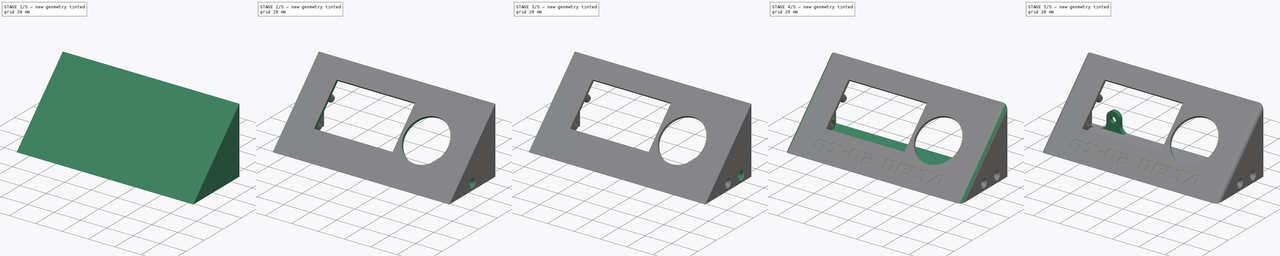
[diagram: build sequence overview — one tinted view per stage of 5, left to right]
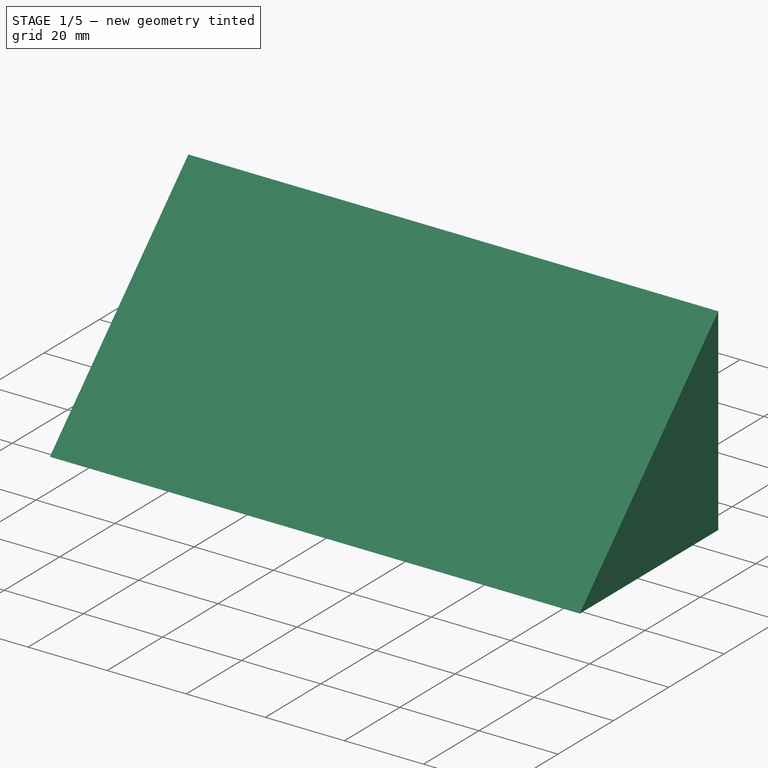
[diagram: stage 1 of 5 — iso view after this stage's code; geometry added in this stage tinted green]
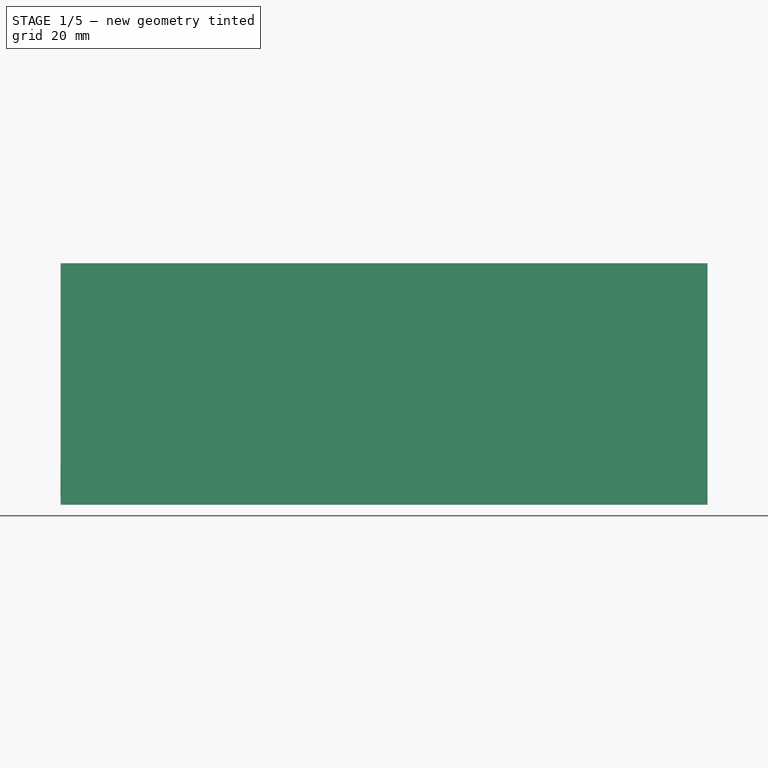
[diagram: stage 1 of 5 — front view after this stage's code; geometry added in this stage tinted green]
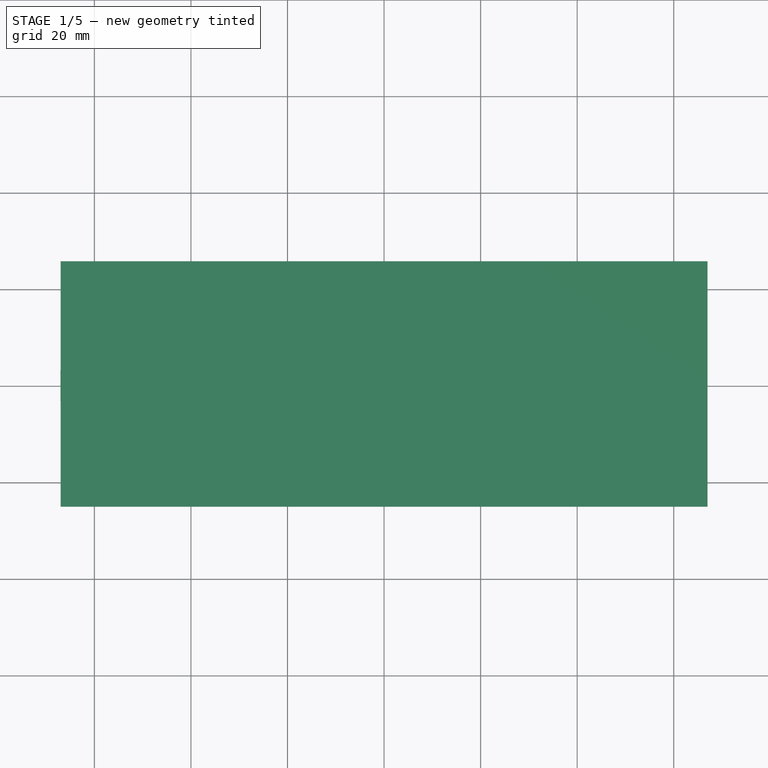
[diagram: stage 1 of 5 — top view after this stage's code; geometry added in this stage tinted green]
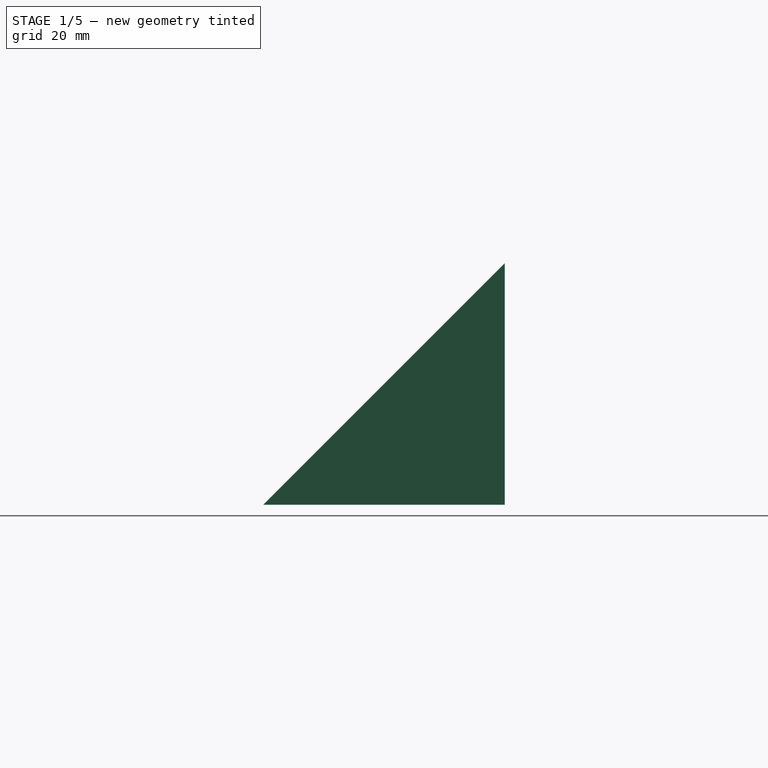
[diagram: stage 1 of 5 — right view after this stage's code; geometry added in this stage tinted green]
FCSTD DOCUMENT  (FreeCAD 0.16R6707 (Git))
Label: Mini Viki Screen Mount
License: CreativeCommons Attribution-NonCommercial
LicenseURL: http://creativecommons.org/licenses/by-nc/4.0/
objects: Sketcher::SketchObject×18, PartDesign::Pad×10, Part::Cut×6, PartDesign::Pocket×4, PartDesign::Revolution×4, PartDesign::Fillet×3, Part::Feature×2, PartDesign::Mirrored×2, PartDesign::Chamfer×1
note: 68 computed .brp shape members not serialized (recipe doc carries the construction recipe); baked Part::Feature solids carry a one-line shape summary decoded from their .brp

FEATURE [Part::Feature] Part__Feature  label="Case"
  Placement = pos=(-45,9.5,0) rot=(0,0,1;0rad)
  shape: bbox 119.5 x 57 x 20 mm, 780 faces, 0 solids (baked)
FEATURE [Sketcher::SketchObject] Sketch
  Placement = pos=(0,0,0) rot=(0.57735,0.57735,0.57735;2.0944rad)
  sketch-geometry (3):
    g0: LineSegment StartX=-25 StartY=-25 StartZ=0 EndX=25 EndY=-25 EndZ=0
    g1: LineSegment StartX=25 StartY=-25 StartZ=0 EndX=25 EndY=25 EndZ=0
    g2: LineSegment StartX=-25 StartY=-25 StartZ=0 EndX=25 EndY=25 EndZ=0
  constraints (10):
    c: Horizontal(g0)
    c: Vertical(g1)
    c: Coincident(g1,g0)
    c: Coincident(g2,g1)
    c: PointOnObject(g-1,g2)
    c: Coincident(g0,g2)
    c: Angle(g0,g2) = 0.785398
    c: Equal(g1,g0)
    c: DistanceY(g1,g1) = 50
    c: Symmetric(g0,g1,g-1)
FEATURE [PartDesign::Pad] Pad
  Length = 134
  Length2 = 100
  Midplane = true
  Placement = pos=(0,0,0) rot=(0.57735,0.57735,0.57735;2.0944rad)
  Sketch = -> Sketch
  Type = 0
FEATURE [Sketcher::SketchObject] Sketch002
  Placement = pos=(0,0,0) rot=(0.57735,0.57735,0.57735;2.0944rad)
  sketch-geometry (3):
    g0: LineSegment StartX=-22 StartY=-25 StartZ=0 EndX=26 EndY=23 EndZ=0
    g1: LineSegment StartX=-22 StartY=-25 StartZ=0 EndX=26 EndY=-25 EndZ=0
    g2: LineSegment StartX=26 StartY=23 StartZ=0 EndX=26 EndY=-25 EndZ=0
  constraints (9):
    c: Coincident(g1,g0)
    c: Coincident(g2,g0)
    c: Vertical(g2)
    c: DistanceX(g0,g-1) = 22
    c: DistanceX(g0,g1) = 48
    c: Equal(g1,g2)
    c: Angle(g1,g0) = 0.785398
    c: DistanceY(g0,g-1) = 25
    c: Coincident(g1,g2)
FEATURE [PartDesign::Pad] Pad001
  Length = 126
  Length2 = 100
  Midplane = true
  Placement = pos=(0,0,0) rot=(0.57735,0.57735,0.57735;2.0944rad)
  Sketch = -> Sketch002
  Type = 0
FEATURE [Part::Cut] Cut
  Base = -> Pad
  Tool = -> Pad001
FEATURE [Sketcher::SketchObject] Sketch003
  Placement = pos=(0,1.5,-1.5) rot=(1,0,0;3.92699rad)
  Support = -> Cut [Face5]
  sketch-geometry (8):
    g0: Circle CenterX=-49 CenterY=9.5 CenterZ=0 NormalX=0 NormalY=0 NormalZ=1 Radius=2.5
    g1: Circle CenterX=-49 CenterY=-10.5 CenterZ=0 NormalX=0 NormalY=0 NormalZ=1 Radius=2.5
    g2: Circle CenterX=47 CenterY=19.5 CenterZ=0 NormalX=0 NormalY=0 NormalZ=1 Radius=2.5
    g3: Circle CenterX=47 CenterY=-19.5 CenterZ=0 NormalX=0 NormalY=0 NormalZ=1 Radius=2.5
    g4: LineSegment [constr] StartX=-52.5 StartY=23 StartZ=0 EndX=52.5 EndY=23 EndZ=0
    g5: LineSegment [constr] StartX=52.5 StartY=23 StartZ=0 EndX=52.5 EndY=-23 EndZ=0
    g6: LineSegment [constr] StartX=52.5 StartY=-23 StartZ=0 EndX=-52.5 EndY=-23 EndZ=0
    g7: LineSegment [constr] StartX=-52.5 StartY=-23 StartZ=0 EndX=-52.5 EndY=23 EndZ=0
  constraints (23):
    c: Radius(g0) = 2.5
    c: Equal(g0,g1)
    c: Equal(g0,g3)
    c: Equal(g0,g2)
    c: Coincident(g4,g5)
    c: Coincident(g5,g6)
    c: Coincident(g6,g7)
    c: Coincident(g7,g4)
    c: Horizontal(g4)
    c: Horizontal(g6)
    c: Vertical(g5)
    c: Vertical(g7)
    c: DistanceY(g5,g5) = 46
    c: Symmetric(g5,g4,g-1)
    c: DistanceX(g4,g4) = 105
    c: Symmetric(g4,g4,g-2)
    c: Symmetric(g3,g2,g-1)
    c: DistanceX(g3,g5) = 5.5
    c: DistanceY(g5,g3) = 3.5
    c: DistanceY(g0,g4) = 13.5
    c: DistanceX(g4,g0) = 3.5
    c: DistanceX(g6,g1) = 3.5
    c: DistanceY(g6,g1) = 12.5
FEATURE [PartDesign::Pad] Pad002
  Length = 5.5
  Length2 = 100
  Sketch = -> Sketch003
  Type = 0
FEATURE [Sketcher::SketchObject] Sketch009
  Placement = pos=(-66.2,0,-20) rot=(0,0,1;1.5708rad)
  sketch-geometry (4):
    g0: LineSegment StartX=-3.2 StartY=0.825 StartZ=0 EndX=0 EndY=0.825 EndZ=0
    g1: LineSegment StartX=-1.7 StartY=-0.825 StartZ=0 EndX=0 EndY=-0.825 EndZ=0
    g2: LineSegment StartX=-3.2 StartY=0.825 StartZ=0 EndX=-1.7 EndY=-0.825 EndZ=0
    g3: LineSegment StartX=0 StartY=0.825 StartZ=0 EndX=0 EndY=-0.825 EndZ=0
  constraints (12):
    c: Horizontal(g0)
    c: Horizontal(g1)
    c: DistanceY(g1,g0) = 1.65
    c: Coincident(g2,g0)
    c: Coincident(g2,g1)
    c: DistanceX(g0,g0) = 3.2
    c: DistanceX(g1,g1) = 1.7
    c: DistanceY(g-1,g0) = 0.825
    c: PointOnObject(g1,g-2)
    c: PointOnObject(g0,g-2)
    c: Coincident(g3,g0)
    c: Coincident(g3,g1)
FEATURE [PartDesign::Revolution] Revolution002
  Angle = 360
  Axis = (-1,0,0)
  Base = (-66.2,0,-20)
  Placement = pos=(-66.2,0,-20) rot=(0,0,1;1.5708rad)
  ReferenceAxis = -> Sketch009 [V_Axis]
  Sketch = -> Sketch009
FEATURE [Sketcher::SketchObject] Sketch010
  Placement = pos=(-65.375,0,-20) rot=(0.57735,0.57735,0.57735;2.0944rad)
  Support = -> Revolution002 [Face3]
  sketch-geometry (1):
    g0: Circle CenterX=0 CenterY=0 CenterZ=0 NormalX=0 NormalY=0 NormalZ=1 Radius=1.7
  constraints (2):
    c: Radius(g0) = 1.7
    c: Coincident(g0,g-1)
FEATURE [PartDesign::Pad] Pad005
  Length = 15
  Length2 = 100
  Placement = pos=(-66.2,0,-20) rot=(0,0,1;1.5708rad)
  Sketch = -> Sketch010
  Type = 0
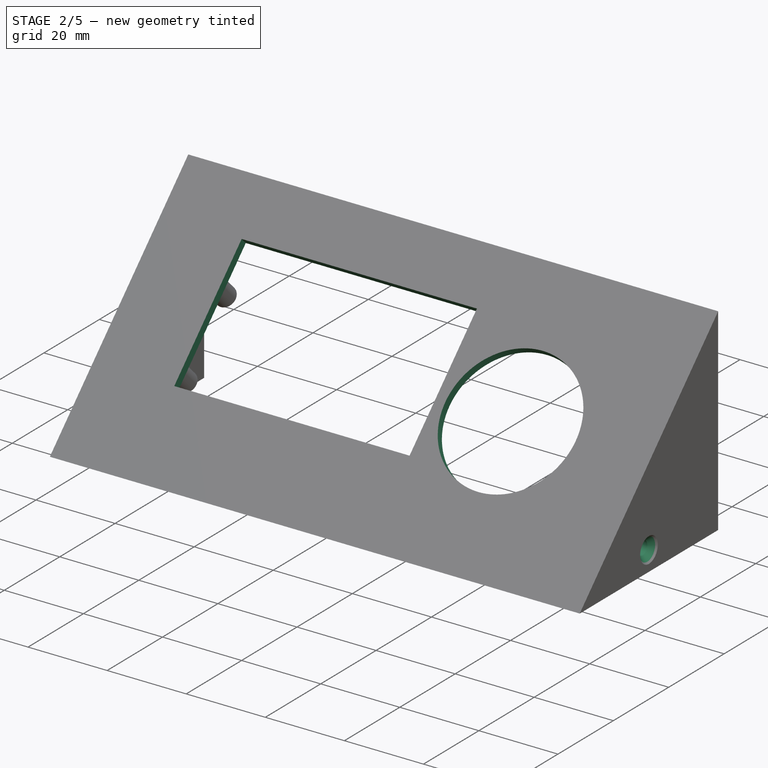
[diagram: stage 2 of 5 — iso view after this stage's code; geometry added in this stage tinted green]
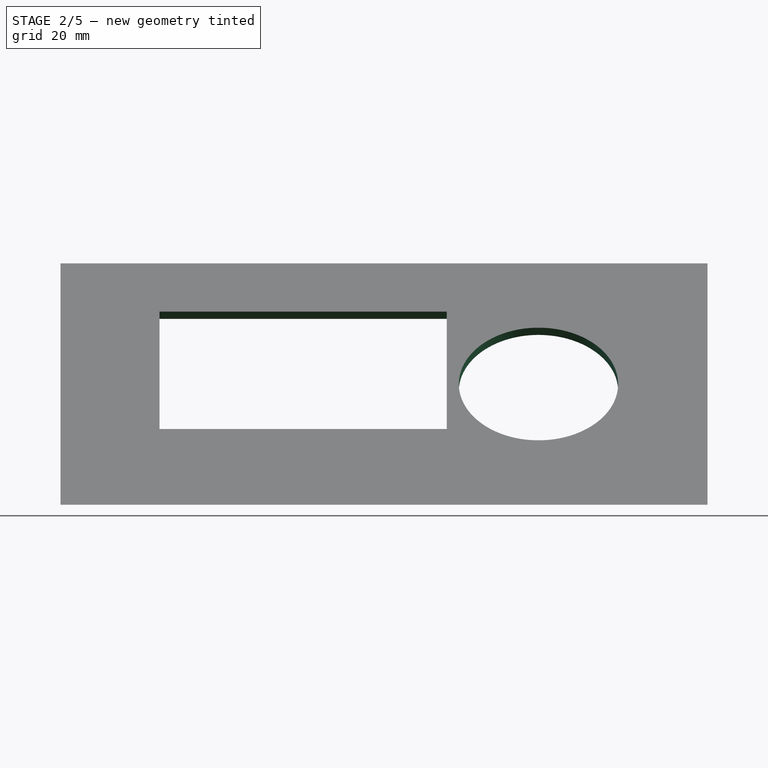
[diagram: stage 2 of 5 — front view after this stage's code; geometry added in this stage tinted green]
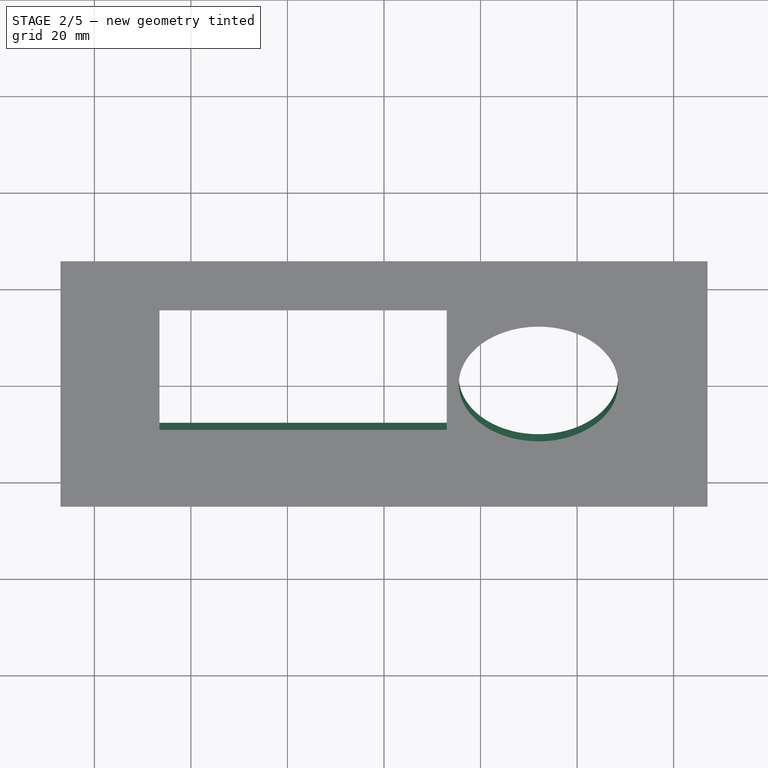
[diagram: stage 2 of 5 — top view after this stage's code; geometry added in this stage tinted green]
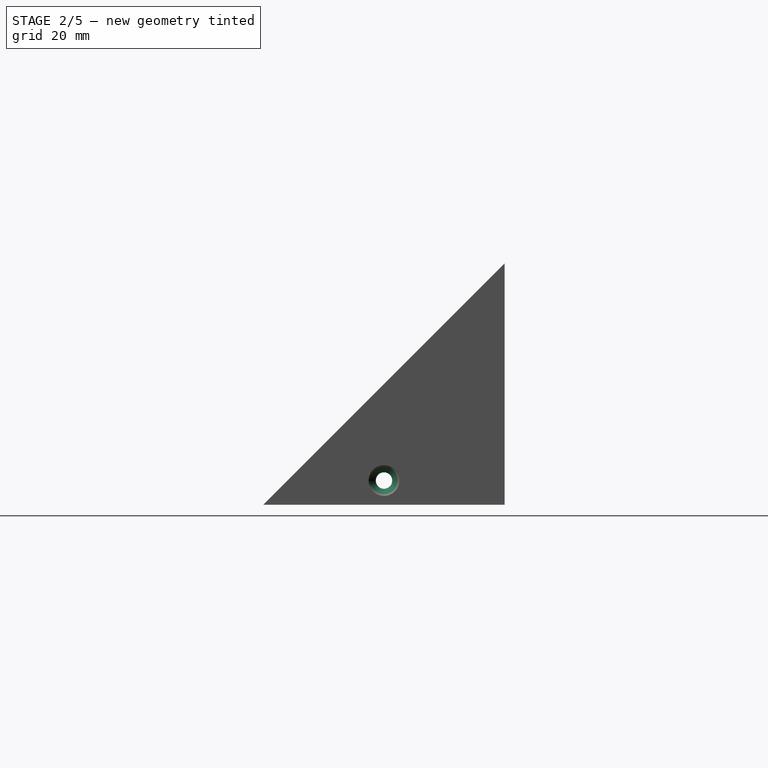
[diagram: stage 2 of 5 — right view after this stage's code; geometry added in this stage tinted green]
FEATURE [Sketcher::SketchObject] Sketch004
  Placement = pos=(0,5.38909,-5.38909) rot=(0,0.92388,0.382683;3.14159rad)
  Support = -> Pad002 [Face15]
  sketch-geometry (8):
    g0: Circle CenterX=49 CenterY=10.5 CenterZ=0 NormalX=0 NormalY=0 NormalZ=1 Radius=1.6
    g1: Circle CenterX=49 CenterY=-9.5 CenterZ=0 NormalX=0 NormalY=0 NormalZ=1 Radius=1.6
    g2: Circle CenterX=-47 CenterY=19.5 CenterZ=0 NormalX=0 NormalY=0 NormalZ=1 Radius=1.6
    g3: Circle CenterX=-47 CenterY=-19.5 CenterZ=0 NormalX=0 NormalY=0 NormalZ=1 Radius=1.6
    g4: LineSegment [constr] StartX=-52.5 StartY=23 StartZ=0 EndX=52.5 EndY=23 EndZ=0
    g5: LineSegment [constr] StartX=52.5 StartY=23 StartZ=0 EndX=52.5 EndY=-23 EndZ=0
    g6: LineSegment [constr] StartX=52.5 StartY=-23 StartZ=0 EndX=-52.5 EndY=-23 EndZ=0
    g7: LineSegment [constr] StartX=-52.5 StartY=-23 StartZ=0 EndX=-52.5 EndY=23 EndZ=0
  constraints (23):
    c: Symmetric(g2,g3,g-1)
    c: Radius(g0) = 1.6
    c: Equal(g0,g1)
    c: Equal(g0,g3)
    c: Equal(g0,g2)
    c: Coincident(g4,g5)
    c: Coincident(g5,g6)
    c: Coincident(g6,g7)
    c: Coincident(g7,g4)
    c: Horizontal(g4)
    c: Horizontal(g6)
    c: Vertical(g5)
    c: Vertical(g7)
    c: Symmetric(g5,g4,g-1)
    c: Symmetric(g4,g4,g-2)
    c: DistanceX(g4,g4) = 105
    c: DistanceY(g5,g5) = 46
    c: DistanceX(g4,g2) = 5.5
    c: DistanceY(g2,g4) = 3.5
    c: DistanceX(g1,g5) = 3.5
    c: DistanceY(g5,g1) = 13.5
    c: DistanceY(g0,g4) = 12.5
    c: DistanceX(g0,g4) = 3.5
FEATURE [PartDesign::Pocket] Pocket
  Length = 5.5
  Sketch = -> Sketch004
  Type = 0
FEATURE [Sketcher::SketchObject] Sketch001  label="Base Sketch"
  Placement = pos=(0,0,0) rot=(1,0,0;0.785398rad)
  Support = -> Pocket [Face8]
  sketch-geometry (10):
    g0: Circle CenterX=32 CenterY=0 CenterZ=0 NormalX=0 NormalY=0 NormalZ=1 Radius=16.5
    g1: LineSegment StartX=-46.5 StartY=21.2 StartZ=0 EndX=13 EndY=21.2 EndZ=0
    g2: LineSegment StartX=13 StartY=21.2 StartZ=0 EndX=13 EndY=-13.2 EndZ=0
    g3: LineSegment StartX=13 StartY=-13.2 StartZ=0 EndX=-46.5 EndY=-13.2 EndZ=0
    g4: LineSegment StartX=-46.5 StartY=-13.2 StartZ=0 EndX=-46.5 EndY=21.2 EndZ=0
    g5: LineSegment [constr] StartX=-52.5 StartY=23 StartZ=0 EndX=52.5 EndY=23 EndZ=0
    g6: LineSegment [constr] StartX=52.5 StartY=23 StartZ=0 EndX=52.5 EndY=-23 EndZ=0
    g7: LineSegment [constr] StartX=52.5 StartY=-23 StartZ=0 EndX=-52.5 EndY=-23 EndZ=0
    g8: LineSegment [constr] StartX=-52.5 StartY=-23 StartZ=0 EndX=-52.5 EndY=23 EndZ=0
    g9: GeomPoint [constr] X=48.5 Y=0 Z=0
  constraints (29):
    c: Coincident(g1,g2)
    c: Coincident(g2,g3)
    c: Coincident(g3,g4)
    c: Coincident(g4,g1)
    c: Horizontal(g1)
    c: Horizontal(g3)
    c: Vertical(g2)
    c: Vertical(g4)
    c: DistanceY(g2,g2) = 34.4
    c: DistanceX(g3,g3) = 59.5
    c: Radius(g0) = 16.5
    c: PointOnObject(g0,g-1)
    c: Coincident(g5,g6)
    c: Coincident(g6,g7)
    c: Coincident(g7,g8)
    c: Coincident(g8,g5)
    c: Horizontal(g5)
    c: Horizontal(g7)
    c: Vertical(g6)
    c: Vertical(g8)
    c: Symmetric(g6,g5,g-1)
    c: Symmetric(g5,g5,g-2)
    c: DistanceY(g6,g6) = 46
    c: DistanceX(g5,g5) = 105
    c: DistanceY(g1,g5) = 1.8
    c: PointOnObject(g9,g0)
    c: PointOnObject(g9,g-1)
    c: DistanceX(g9,g6) = 4
    c: DistanceX(g5,g1) = 6
FEATURE [PartDesign::Pocket] Pocket001
  Length = 5
  Sketch = -> Sketch001
  Type = 0
FEATURE [Sketcher::SketchObject] Sketch005
  Placement = pos=(66.2,0,-20) rot=(0.707107,0.707107,0;3.14159rad)
  sketch-geometry (4):
    g0: LineSegment StartX=-3.2 StartY=0.825 StartZ=0 EndX=0 EndY=0.825 EndZ=0
    g1: LineSegment StartX=-1.7 StartY=-0.825 StartZ=0 EndX=0 EndY=-0.825 EndZ=0
    g2: LineSegment StartX=-3.2 StartY=0.825 StartZ=0 EndX=-1.7 EndY=-0.825 EndZ=0
    g3: LineSegment StartX=0 StartY=0.825 StartZ=0 EndX=0 EndY=-0.825 EndZ=0
  constraints (12):
    c: Horizontal(g0)
    c: Horizontal(g1)
    c: DistanceY(g1,g0) = 1.65
    c: Coincident(g2,g0)
    c: Coincident(g2,g1)
    c: DistanceX(g0,g0) = 3.2
    c: DistanceX(g1,g1) = 1.7
    c: DistanceY(g-1,g0) = 0.825
    c: PointOnObject(g1,g-2)
    c: PointOnObject(g0,g-2)
    c: Coincident(g3,g0)
    c: Coincident(g3,g1)
FEATURE [PartDesign::Revolution] Revolution
  Angle = 360
  Axis = (1,0,0)
  Base = (66.2,0,-20)
  Placement = pos=(66.2,0,-20) rot=(0.707107,0.707107,0;3.14159rad)
  ReferenceAxis = -> Sketch005 [V_Axis]
  Sketch = -> Sketch005
FEATURE [Sketcher::SketchObject] Sketch006
  Placement = pos=(65.375,0,-20) rot=(0.57735,0.57735,-0.57735;4.18879rad)
  Support = -> Revolution [Face3]
  sketch-geometry (1):
    g0: Circle CenterX=0 CenterY=0 CenterZ=0 NormalX=0 NormalY=0 NormalZ=1 Radius=1.7
  constraints (2):
    c: Radius(g0) = 1.7
    c: Coincident(g0,g-1)
FEATURE [PartDesign::Pad] Pad003
  Length = 15
  Length2 = 100
  Placement = pos=(66.2,0,-20) rot=(0.707107,0.707107,0;3.14159rad)
  Sketch = -> Sketch006
  Type = 0
FEATURE [Sketcher::SketchObject] Sketch017
  Placement = pos=(0,25,-25) rot=(0,0.707107,0.707107;3.14159rad)
  Support = -> Pad009 [Face27]
  sketch-geometry (1):
    g0: Circle CenterX=45 CenterY=10 CenterZ=0 NormalX=0 NormalY=0 NormalZ=1 Radius=2.2
  constraints (3):
    c: DistanceY(g-1,g0) = 10
    c: DistanceX(g-1,g0) = 45
    c: Radius(g0) = 2.2
FEATURE [Part::Cut] Cut001
  Base = -> Pocket001
  Tool = -> Pad005
FEATURE [Part::Cut] Cut002
  Base = -> Cut001
  Tool = -> Pad003
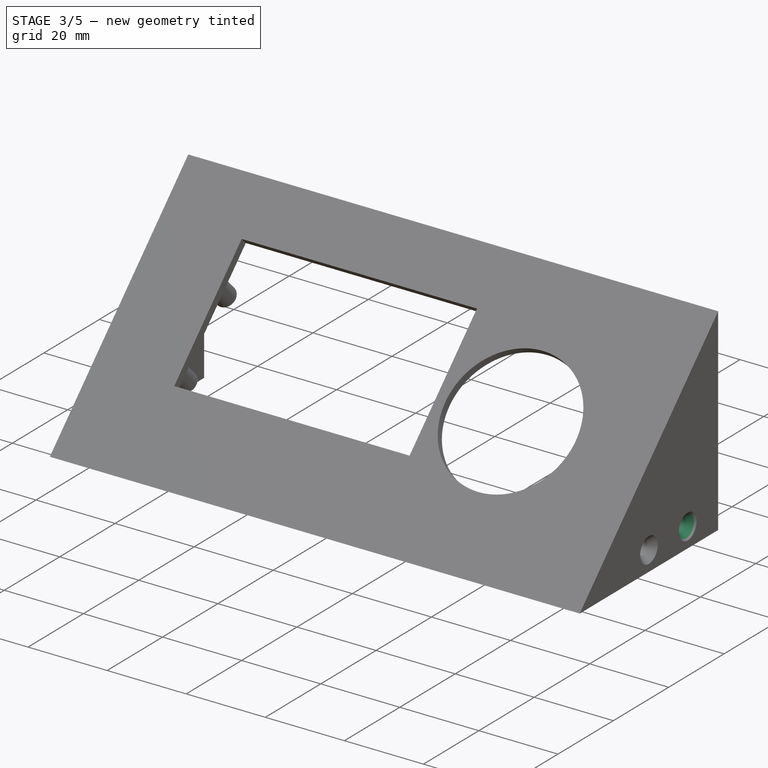
[diagram: stage 3 of 5 — iso view after this stage's code; geometry added in this stage tinted green]
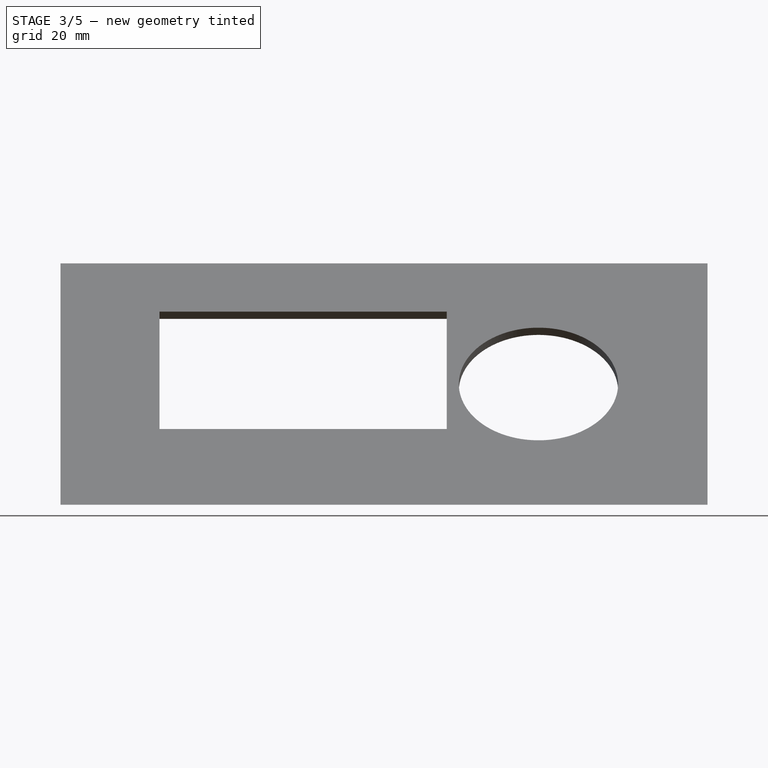
[diagram: stage 3 of 5 — front view after this stage's code; geometry added in this stage tinted green]
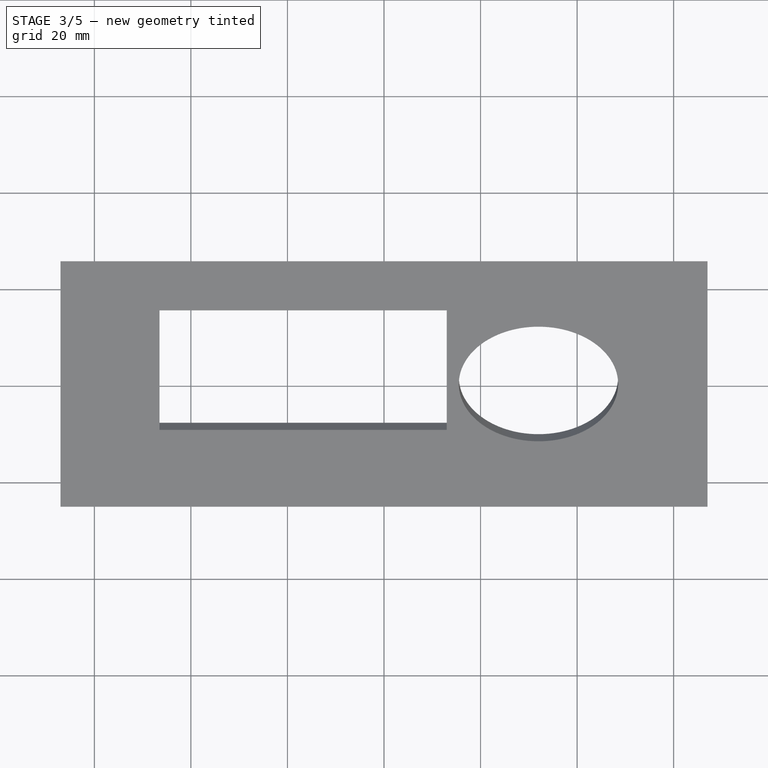
[diagram: stage 3 of 5 — top view after this stage's code; geometry added in this stage tinted green]
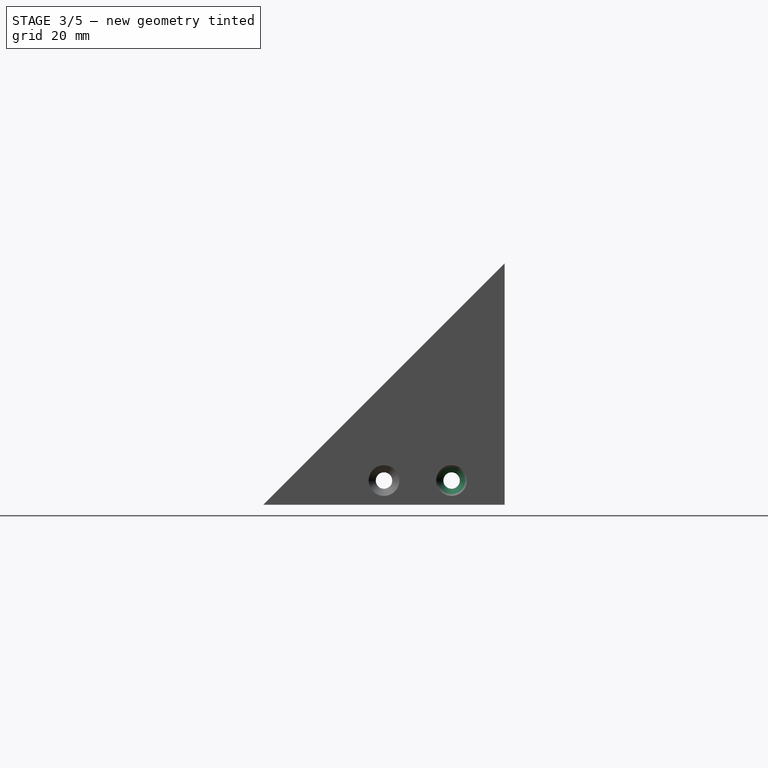
[diagram: stage 3 of 5 — right view after this stage's code; geometry added in this stage tinted green]
FEATURE [Sketcher::SketchObject] Sketch007
  Placement = pos=(66.2,14,-20) rot=(0.707107,0.707107,0;3.14159rad)
  sketch-geometry (4):
    g0: LineSegment StartX=-3.2 StartY=0.825 StartZ=0 EndX=0 EndY=0.825 EndZ=0
    g1: LineSegment StartX=-1.7 StartY=-0.825 StartZ=0 EndX=0 EndY=-0.825 EndZ=0
    g2: LineSegment StartX=-3.2 StartY=0.825 StartZ=0 EndX=-1.7 EndY=-0.825 EndZ=0
    g3: LineSegment StartX=0 StartY=0.825 StartZ=0 EndX=0 EndY=-0.825 EndZ=0
  constraints (12):
    c: Horizontal(g0)
    c: Horizontal(g1)
    c: DistanceY(g1,g0) = 1.65
    c: Coincident(g2,g0)
    c: Coincident(g2,g1)
    c: DistanceX(g0,g0) = 3.2
    c: DistanceX(g1,g1) = 1.7
    c: DistanceY(g-1,g0) = 0.825
    c: PointOnObject(g1,g-2)
    c: PointOnObject(g0,g-2)
    c: Coincident(g3,g0)
    c: Coincident(g3,g1)
FEATURE [PartDesign::Revolution] Revolution001
  Angle = 360
  Axis = (1,0,0)
  Base = (66.2,14,-20)
  Placement = pos=(66.2,14,-20) rot=(0.707107,0.707107,0;3.14159rad)
  ReferenceAxis = -> Sketch007 [V_Axis]
  Sketch = -> Sketch007
FEATURE [Sketcher::SketchObject] Sketch008
  Placement = pos=(65.375,14,-20) rot=(0.57735,0.57735,-0.57735;4.18879rad)
  Support = -> Revolution001 [Face3]
  sketch-geometry (1):
    g0: Circle CenterX=0 CenterY=0 CenterZ=0 NormalX=0 NormalY=0 NormalZ=1 Radius=1.7
  constraints (2):
    c: Radius(g0) = 1.7
    c: Coincident(g0,g-1)
FEATURE [PartDesign::Pad] Pad004
  Length = 15
  Length2 = 100
  Placement = pos=(66.2,14,-20) rot=(0.707107,0.707107,0;3.14159rad)
  Sketch = -> Sketch008
  Type = 0
FEATURE [Sketcher::SketchObject] Sketch011
  Placement = pos=(-66.2,14,-20) rot=(0,0,1;1.5708rad)
  sketch-geometry (4):
    g0: LineSegment StartX=-3.2 StartY=0.825 StartZ=0 EndX=0 EndY=0.825 EndZ=0
    g1: LineSegment StartX=-1.7 StartY=-0.825 StartZ=0 EndX=0 EndY=-0.825 EndZ=0
    g2: LineSegment StartX=-3.2 StartY=0.825 StartZ=0 EndX=-1.7 EndY=-0.825 EndZ=0
    g3: LineSegment StartX=0 StartY=0.825 StartZ=0 EndX=0 EndY=-0.825 EndZ=0
  constraints (12):
    c: Horizontal(g0)
    c: Horizontal(g1)
    c: DistanceY(g1,g0) = 1.65
    c: Coincident(g2,g0)
    c: Coincident(g2,g1)
    c: DistanceX(g0,g0) = 3.2
    c: DistanceX(g1,g1) = 1.7
    c: DistanceY(g-1,g0) = 0.825
    c: PointOnObject(g1,g-2)
    c: PointOnObject(g0,g-2)
    c: Coincident(g3,g0)
    c: Coincident(g3,g1)
FEATURE [PartDesign::Revolution] Revolution003
  Angle = 360
  Axis = (-1,0,0)
  Base = (-66.2,14,-20)
  Placement = pos=(-66.2,14,-20) rot=(0,0,1;1.5708rad)
  ReferenceAxis = -> Sketch011 [V_Axis]
  Sketch = -> Sketch011
FEATURE [Sketcher::SketchObject] Sketch012
  Placement = pos=(-65.375,14,-20) rot=(0.57735,0.57735,0.57735;2.0944rad)
  Support = -> Revolution003 [Face3]
  sketch-geometry (1):
    g0: Circle CenterX=0 CenterY=0 CenterZ=0 NormalX=0 NormalY=0 NormalZ=1 Radius=1.7
  constraints (2):
    c: Radius(g0) = 1.7
    c: Coincident(g0,g-1)
FEATURE [PartDesign::Pad] Pad006
  Length = 15
  Length2 = 100
  Placement = pos=(-66.2,14,-20) rot=(0,0,1;1.5708rad)
  Sketch = -> Sketch012
  Type = 0
FEATURE [Part::Cut] Cut003
  Base = -> Cut002
  Tool = -> Pad006
FEATURE [Part::Cut] Cut004
  Base = -> Cut003
  Tool = -> Pad004
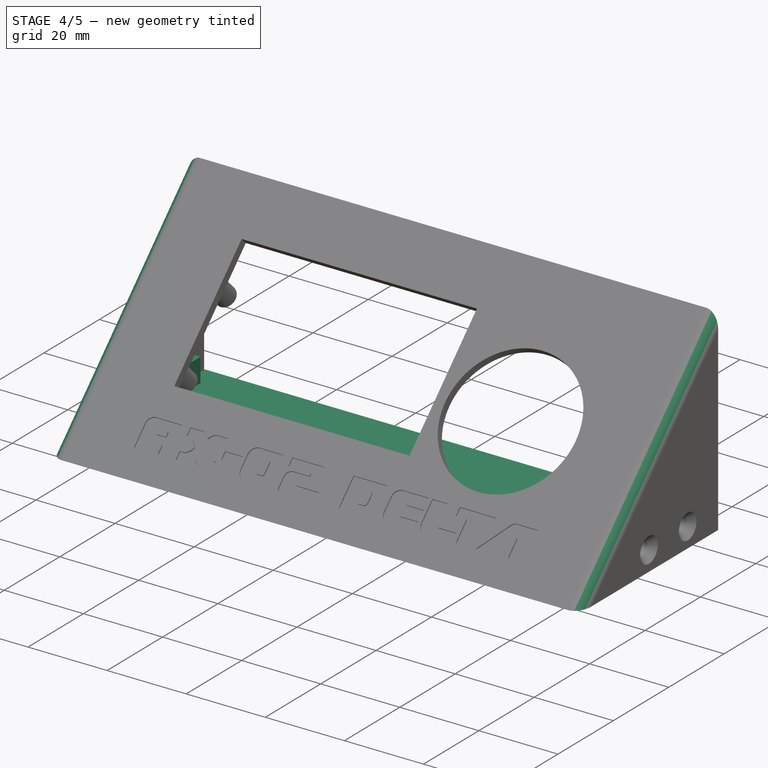
[diagram: stage 4 of 5 — iso view after this stage's code; geometry added in this stage tinted green]
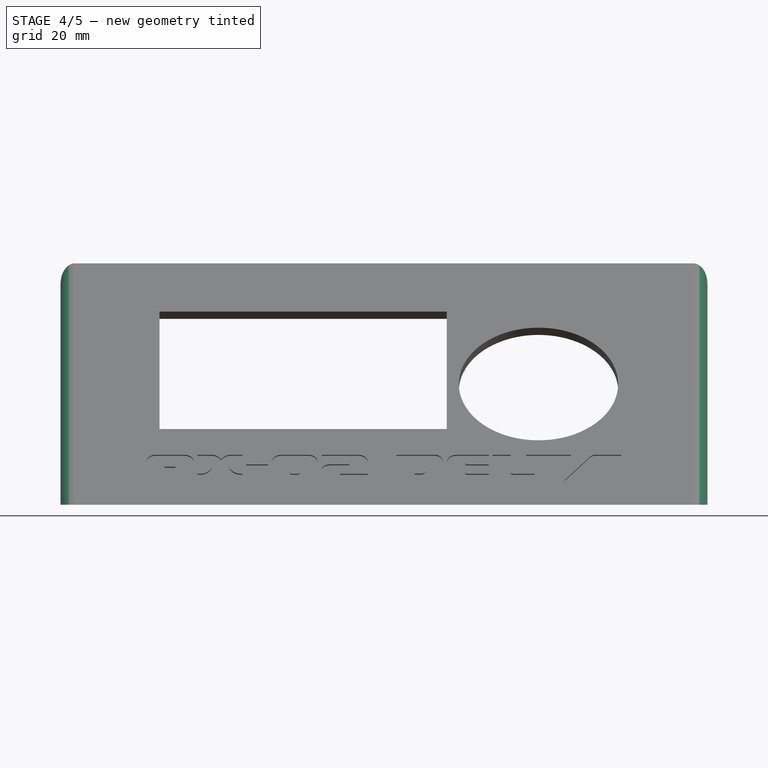
[diagram: stage 4 of 5 — front view after this stage's code; geometry added in this stage tinted green]
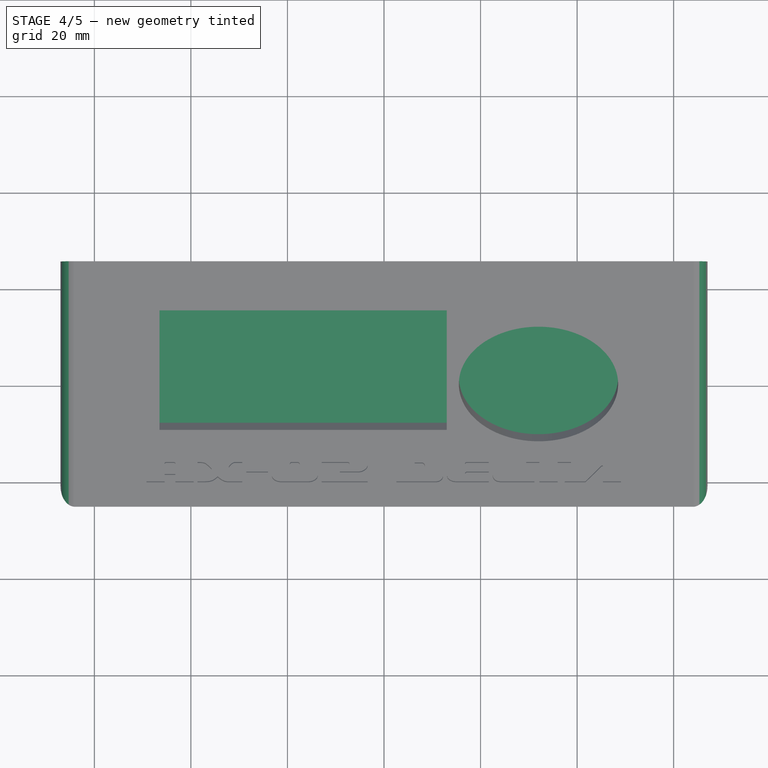
[diagram: stage 4 of 5 — top view after this stage's code; geometry added in this stage tinted green]
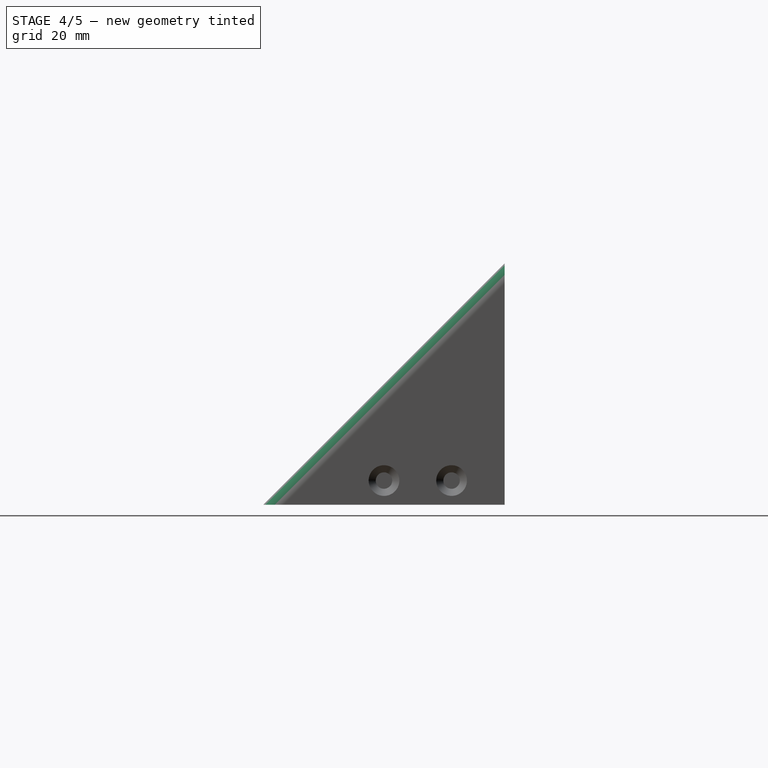
[diagram: stage 4 of 5 — right view after this stage's code; geometry added in this stage tinted green]
FEATURE [Sketcher::SketchObject] Sketch013
  Placement = pos=(0,0,-25) rot=(0,0,1;0rad)
  sketch-geometry (4):
    g0: LineSegment StartX=-62.8 StartY=25 StartZ=0 EndX=62.8 EndY=25 EndZ=0
    g1: LineSegment StartX=62.8 StartY=25 StartZ=0 EndX=62.8 EndY=-21.6 EndZ=0
    g2: LineSegment StartX=62.8 StartY=-21.6 StartZ=0 EndX=-62.8 EndY=-21.6 EndZ=0
    g3: LineSegment StartX=-62.8 StartY=-21.6 StartZ=0 EndX=-62.8 EndY=25 EndZ=0
  constraints (12):
    c: Coincident(g1,g2)
    c: Coincident(g2,g3)
    c: Horizontal(g0)
    c: Horizontal(g2)
    c: Vertical(g1)
    c: Vertical(g3)
    c: DistanceX(g0,g0) = 125.6
    c: DistanceY(g1,g1) = 46.6
    c: Symmetric(g0,g0,g-2)
    c: DistanceY(g2,g-1) = 21.6
    c: Coincident(g0,g1)
    c: Coincident(g0,g3)
FEATURE [PartDesign::Pad] Pad007
  Length = 2
  Length2 = 100
  Placement = pos=(0,0,-25) rot=(0,0,1;0rad)
  Sketch = -> Sketch013
  Type = 0
FEATURE [PartDesign::Chamfer] Chamfer
  Base = -> Pad007 [Edge10]
  Placement = pos=(0,0,-25) rot=(0,0,1;0rad)
  Size = 1.99
FEATURE [Sketcher::SketchObject] Sketch014
  Placement = pos=(0,0,-23) rot=(0,0,1;0rad)
  Support = -> Chamfer [Face5]
  sketch-geometry (4):
    g0: LineSegment StartX=-62.8 StartY=19 StartZ=0 EndX=-59.7 EndY=19 EndZ=0
    g1: LineSegment StartX=-59.7 StartY=19 StartZ=0 EndX=-59.7 EndY=-5 EndZ=0
    g2: LineSegment StartX=-59.7 StartY=-5 StartZ=0 EndX=-62.8 EndY=-5 EndZ=0
    g3: LineSegment StartX=-62.8 StartY=-5 StartZ=0 EndX=-62.8 EndY=19 EndZ=0
  constraints (12):
    c: Coincident(g0,g1)
    c: Coincident(g1,g2)
    c: Coincident(g2,g3)
    c: Coincident(g3,g0)
    c: Horizontal(g0)
    c: Horizontal(g2)
    c: Vertical(g1)
    c: Vertical(g3)
    c: DistanceX(g1,g-1) = 59.7
    c: DistanceX(g2,g2) = 3.1
    c: DistanceY(g1,g1) = 24
    c: DistanceY(g1,g-1) = 5
FEATURE [PartDesign::Pad] Pad008
  Length = 6
  Length2 = 100
  Placement = pos=(0,0,-25) rot=(0,0,1;0rad)
  Sketch = -> Sketch014
  Type = 0
FEATURE [PartDesign::Mirrored] Mirrored
  MirrorPlane = -> Sketch014 [V_Axis]
  Originals = -> [Pad008]
  Placement = pos=(0,0,-25) rot=(0,0,1;0rad)
FEATURE [PartDesign::Fillet] Fillet  label="Case"
  Base = -> Cut004 [Edge35,Edge9]
  Radius = 3
FEATURE [Part::Feature] Compound001  label="Logo"
  Placement = pos=(-35,-53.61,-54) rot=(1,0,0;0.785398rad)
  shape: bbox 98.3 x 5.539 x 5.539 mm, 242 faces, 10 solids (baked)
FEATURE [Part::Cut] Cut005
  Base = -> Fillet
  Tool = -> Compound001
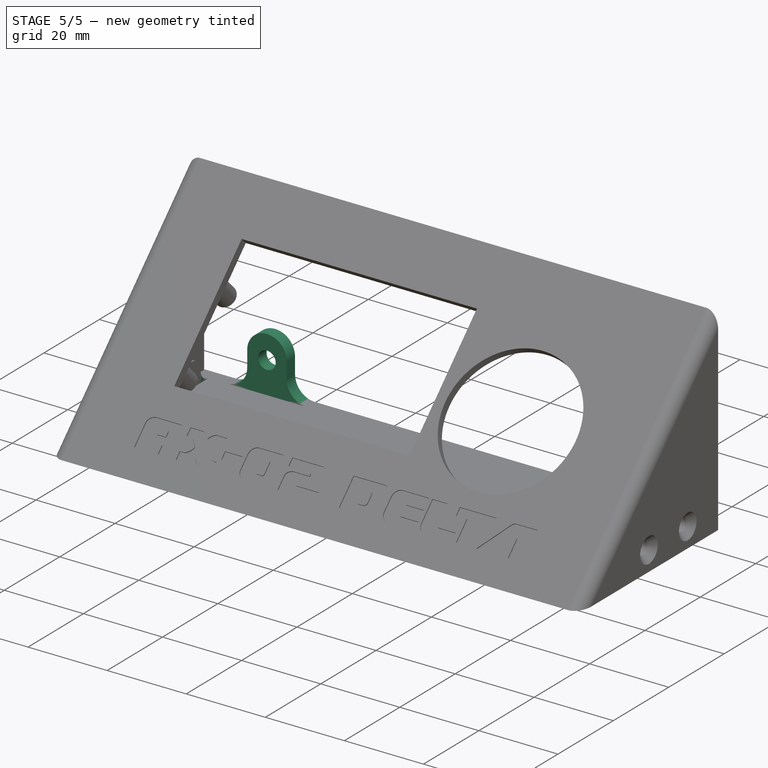
[diagram: stage 5 of 5 — iso view after this stage's code; geometry added in this stage tinted green]
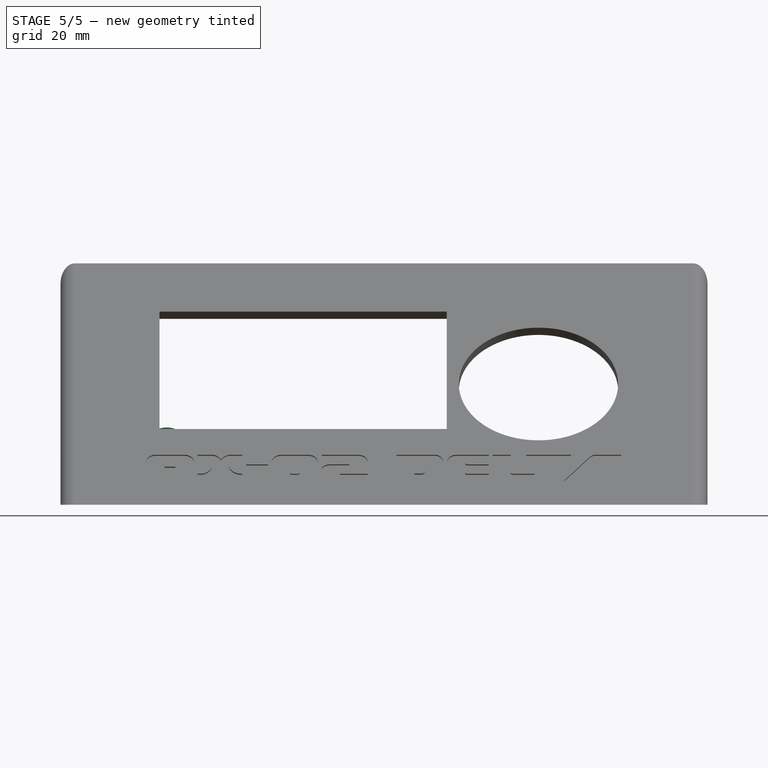
[diagram: stage 5 of 5 — front view after this stage's code; geometry added in this stage tinted green]
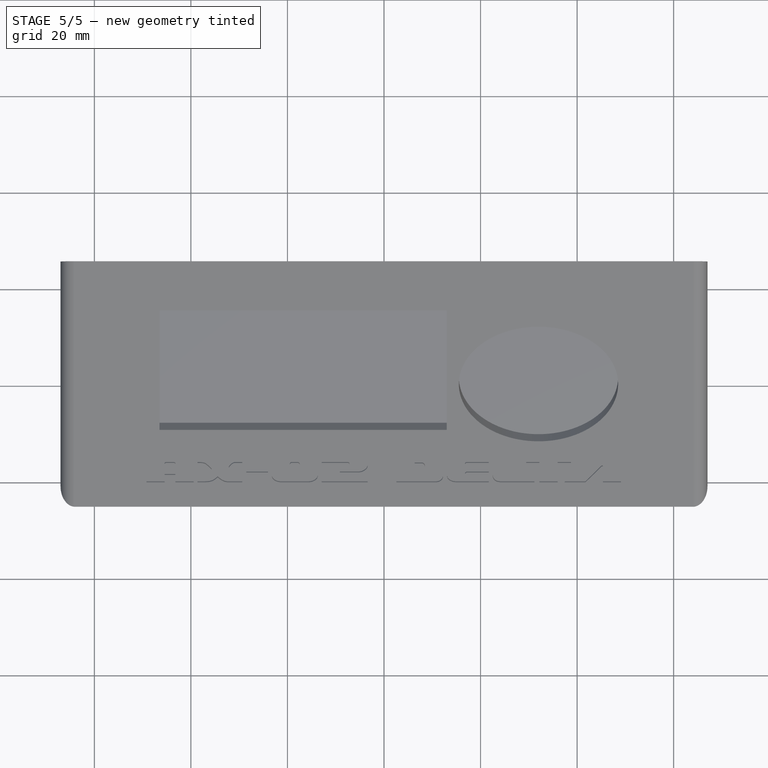
[diagram: stage 5 of 5 — top view after this stage's code; geometry added in this stage tinted green]
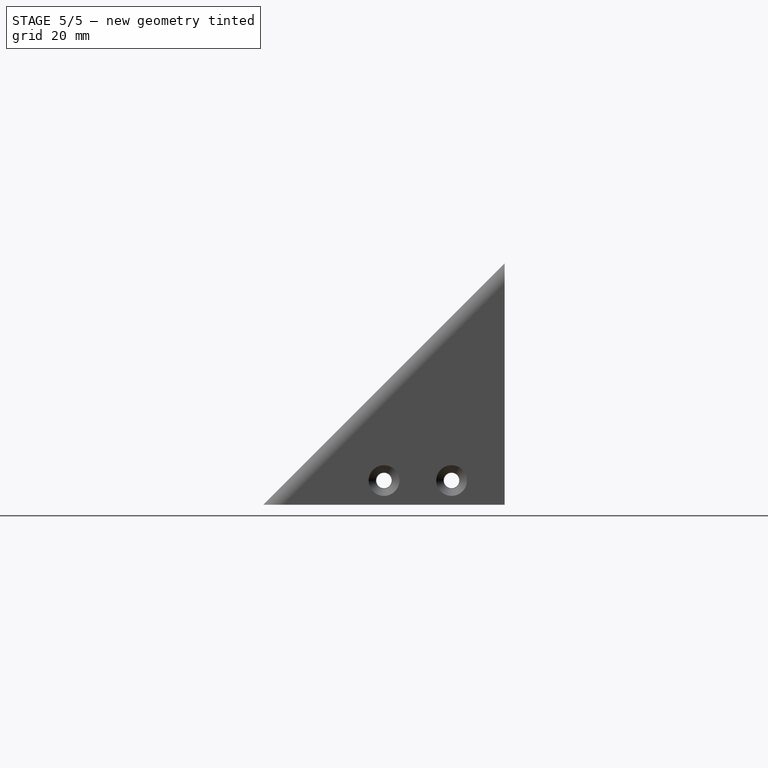
[diagram: stage 5 of 5 — right view after this stage's code; geometry added in this stage tinted green]
FEATURE [Sketcher::SketchObject] Sketch015
  Placement = pos=(-62.8,0,-25) rot=(0.57735,-0.57735,-0.57735;2.0944rad)
  Support = -> Mirrored [Face5]
  sketch-geometry (2):
    g0: Circle CenterX=0 CenterY=5 CenterZ=0 NormalX=0 NormalY=0 NormalZ=1 Radius=1.6
    g1: Circle CenterX=-14 CenterY=5 CenterZ=0 NormalX=0 NormalY=0 NormalZ=1 Radius=1.6
  constraints (6):
    c: PointOnObject(g0,g-2)
    c: DistanceY(g-1,g0) = 5
    c: DistanceY(g1) = 5
    c: Radius(g1) = 1.6
    c: Equal(g1,g0)
    c: DistanceX(g1,g0) = 14
FEATURE [PartDesign::Pocket] Pocket002
  Length = 5
  Placement = pos=(0,0,-25) rot=(0,0,1;0rad)
  Sketch = -> Sketch015
  Type = 1
FEATURE [Sketcher::SketchObject] Sketch016
  Placement = pos=(0,0,-23) rot=(0,0,1;0rad)
  Support = -> Pocket002 [Face6]
  sketch-geometry (8):
    g0: LineSegment StartX=-50 StartY=25 StartZ=0 EndX=-40 EndY=25 EndZ=0
    g1: LineSegment StartX=-40 StartY=25 StartZ=0 EndX=-40 EndY=22 EndZ=0
    g2: LineSegment StartX=-40 StartY=22 StartZ=0 EndX=-50 EndY=22 EndZ=0
    g3: LineSegment StartX=-50 StartY=22 StartZ=0 EndX=-50 EndY=25 EndZ=0
    g4: LineSegment StartX=40 StartY=25 StartZ=0 EndX=50 EndY=25 EndZ=0
    g5: LineSegment StartX=50 StartY=25 StartZ=0 EndX=50 EndY=22 EndZ=0
    g6: LineSegment StartX=50 StartY=22 StartZ=0 EndX=40 EndY=22 EndZ=0
    g7: LineSegment StartX=40 StartY=22 StartZ=0 EndX=40 EndY=25 EndZ=0
  constraints (23):
    c: Coincident(g0,g1)
    c: Coincident(g1,g2)
    c: Coincident(g2,g3)
    c: Coincident(g3,g0)
    c: Horizontal(g0)
    c: Horizontal(g2)
    c: Vertical(g1)
    c: Vertical(g3)
    c: Coincident(g4,g5)
    c: Coincident(g5,g6)
    c: Coincident(g6,g7)
    c: Coincident(g7,g4)
    c: Horizontal(g4)
    c: Horizontal(g6)
    c: Vertical(g5)
    c: Vertical(g7)
    c: Symmetric(g1,g6,g-2)
    c: Equal(g1,g7)
    c: Equal(g2,g6)
    c: DistanceY(g1,g1) = 3
    c: DistanceY(g-1,g1) = 22
    c: DistanceX(g1,g-1) = 40
    c: DistanceX(g6,g6) = 10
FEATURE [PartDesign::Pad] Pad009
  Length = 14
  Length2 = 100
  Placement = pos=(0,0,-25) rot=(0,0,1;0rad)
  Sketch = -> Sketch016
  Type = 0
FEATURE [PartDesign::Pocket] Pocket003
  Length = 5
  Placement = pos=(0,0,-25) rot=(0,0,1;0rad)
  Sketch = -> Sketch017
  Type = 0
FEATURE [PartDesign::Mirrored] Mirrored001
  MirrorPlane = -> Sketch017 [V_Axis]
  Originals = -> [Pocket003]
  Placement = pos=(0,0,-25) rot=(0,0,1;0rad)
FEATURE [PartDesign::Fillet] Fillet001
  Base = -> Mirrored001 [Edge30,Edge65,Edge61,Edge28,Edge24,Edge55,Edge59,Edge26]
  Placement = pos=(0,0,-25) rot=(0,0,1;0rad)
  Radius = 4.99
FEATURE [PartDesign::Fillet] Fillet002  label="Base"
  Base = -> Fillet001 [Edge5,Edge61,Edge9,Edge67,Edge88,Edge17,Edge93,Edge21]
  Placement = pos=(0,0,-25) rot=(0,0,1;0rad)
  Radius = 2.99
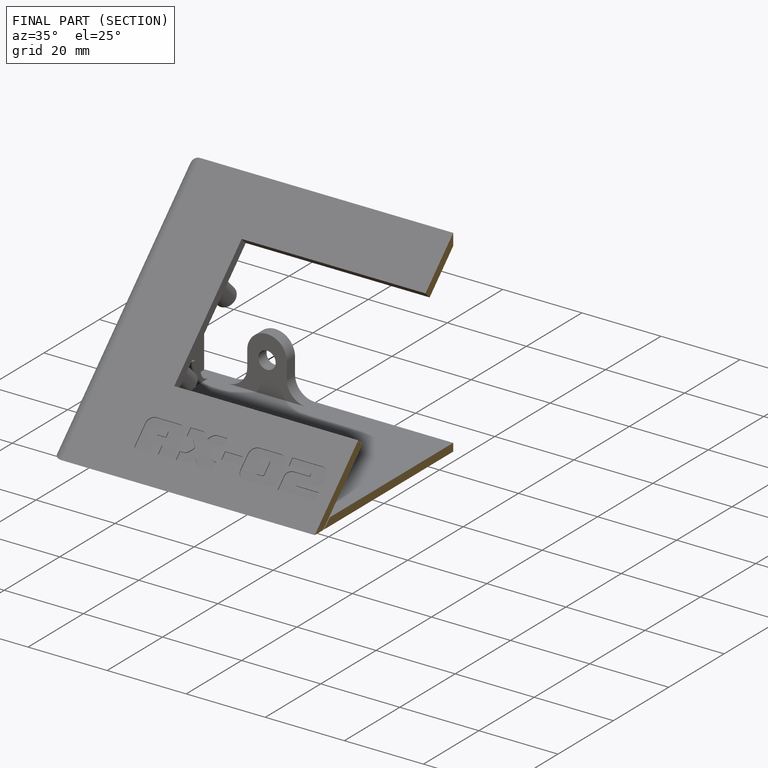
[diagram: finished part — half-section view (interior)]
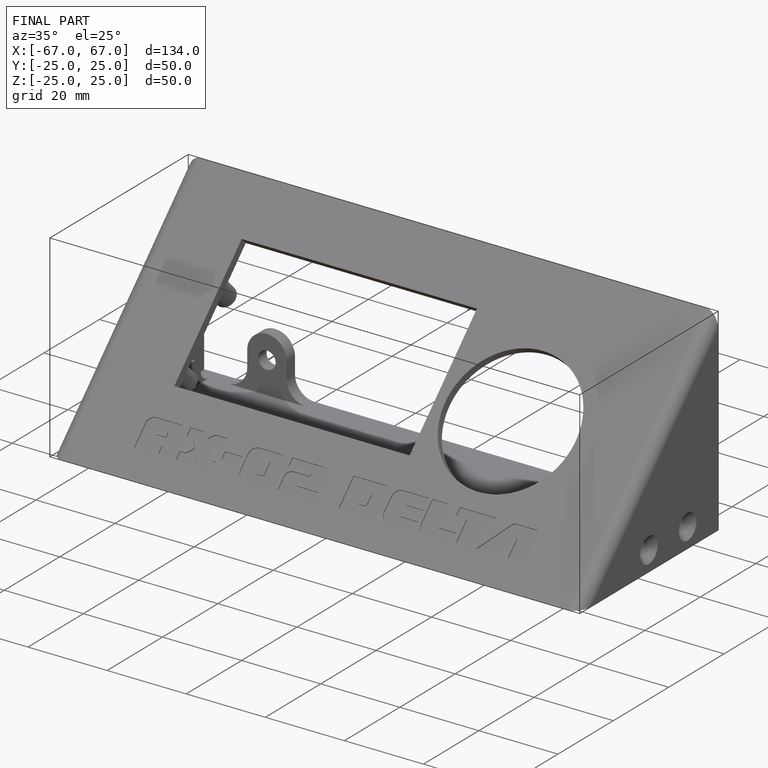
[diagram: finished part — iso view with bounding-box wireframe]
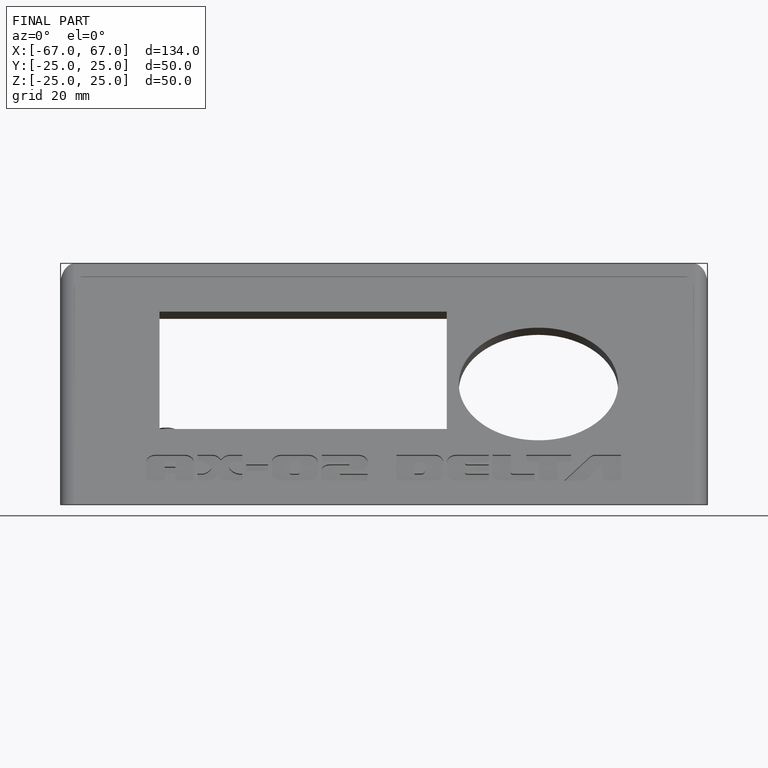
[diagram: finished part — front view with bounding-box wireframe]
